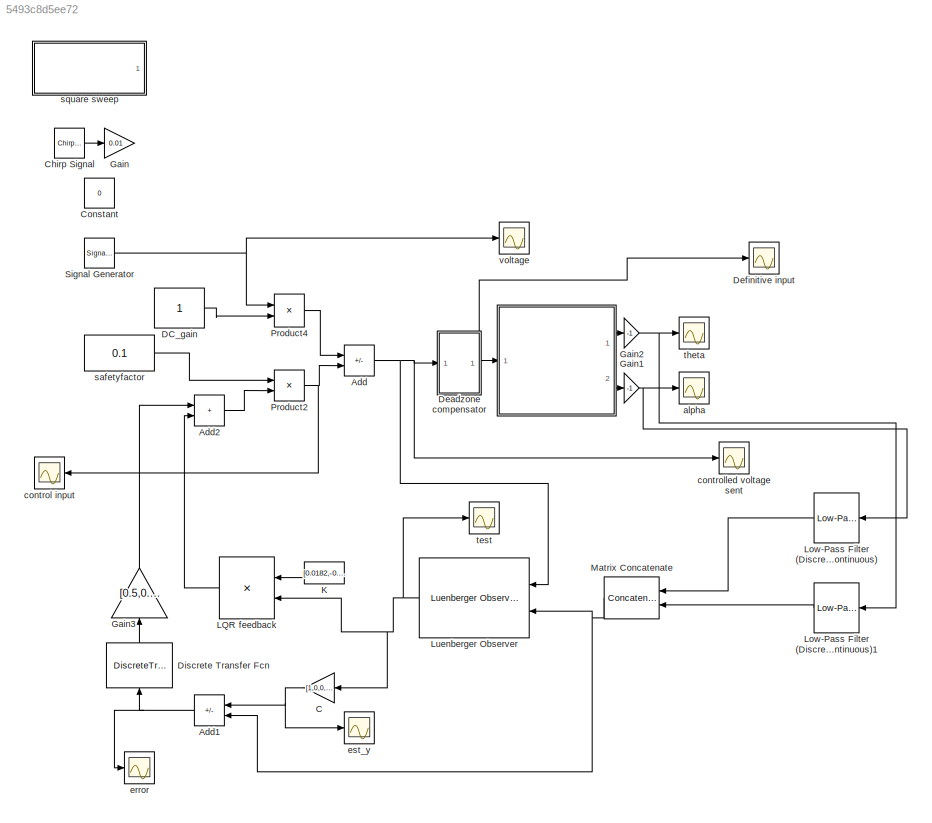
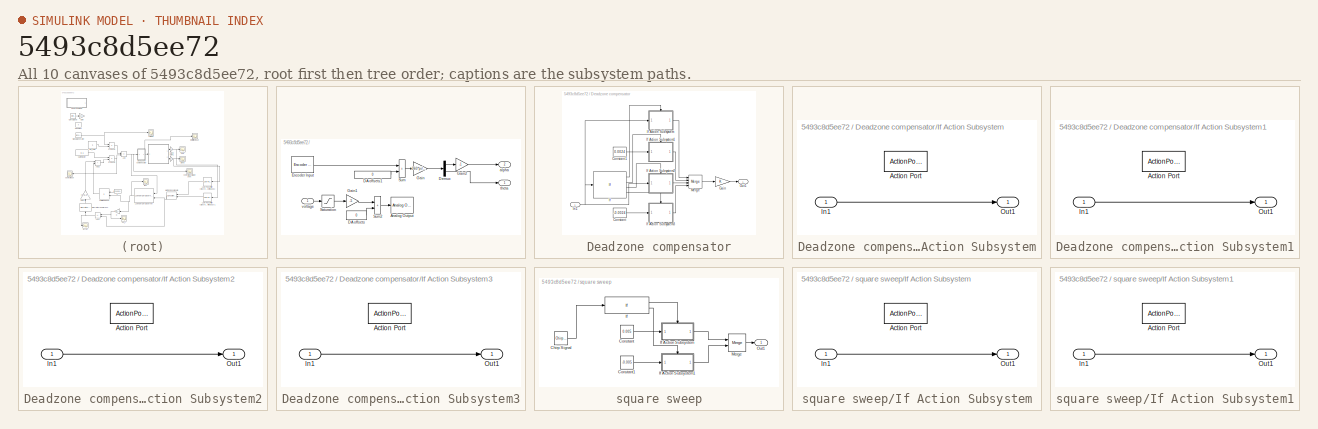
[diagram: thumbnail index - all 10 canvases of the model, root first then tree order]
MODEL slx_5493c8d5ee72
KIND model
CONFIG AbsTol = auto
CONFIG EnableMultiTasking = on
CONFIG FixedStep = auto
CONFIG MaxStep = auto
CONFIG MinStep = auto
CONFIG RelTol = 1e-3
CONFIG SampleTimeConstraint = Unconstrained
CONFIG SolverName = ode1
CONFIG StartTime = 0.0
CONFIG StopTime = 50
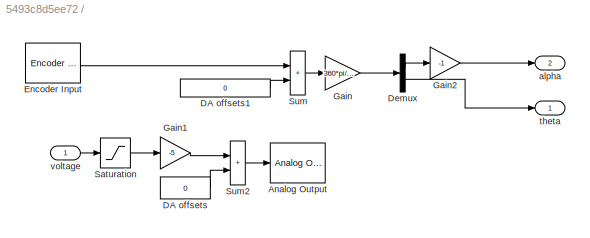
BLOCK [SubSystem]  
  InitFcn = hwinit
  LoadFcn = hwinit
  NameLocation = top
  Ports = [1, 2]
  RequestExecContextInheritance = off
  ShowPortLabels = none
BLOCK [Reference]  /Analog Output  REF=sldrtlib/Analog Output
  AttributesFormatString = Humusoft\nMF634 [auto]
  Ports = [1]
  SourceBlock = sldrtlib/Analog Output
  SourceProductBaseCode = WT
  SourceType = Simulink Desktop Real-Time Analog Output
BLOCK [Constant]  /DA offsets
  Value = 0
BLOCK [Constant]  /DA offsets1
  SampleTime = h
  Value = 0
BLOCK [Demux]  /Demux
  Outputs = 2
  Ports = [1, 2]
BLOCK [Reference]  /Encoder Input  REF=sldrtlib/Encoder Input
  AttributesFormatString = Humusoft\nMF634 [auto]
  Ports = [0, 1]
  SourceBlock = sldrtlib/Encoder Input
  SourceProductBaseCode = WT
  SourceType = Simulink Desktop Real-Time Encoder Input
BLOCK [Gain]  /Gain
  Gain = 360*pi/(180*512*4)
  OutDataTypeStr = Inherit: Same as input
  ParamDataTypeStr = Inherit: Same as input
  SaturateOnIntegerOverflow = on
BLOCK [Gain]  /Gain1
  Gain = -5
  OutDataTypeStr = Inherit: Same as input
  ParamDataTypeStr = Inherit: Same as input
  SaturateOnIntegerOverflow = on
BLOCK [Gain]  /Gain2
  Gain = -1
  OutDataTypeStr = Inherit: Same as input
  ParamDataTypeStr = Inherit: Same as input
  SaturateOnIntegerOverflow = on
BLOCK [Saturate]  /Saturation
  LowerLimit = -1
  UpperLimit = 1
BLOCK [Sum]  /Sum
  IconShape = rectangular
  InputSameDT = on
  OutDataTypeStr = Inherit: Same as first input
  Ports = [2, 1]
  SaturateOnIntegerOverflow = on
BLOCK [Sum]  /Sum2
  IconShape = rectangular
  InputSameDT = on
  OutDataTypeStr = Inherit: Same as first input
  Ports = [2, 1]
  SaturateOnIntegerOverflow = on
BLOCK [Outport]  /alpha
  Port = 2
  Tag = Cable length
BLOCK [Outport]  /theta
  Tag = Cable length
BLOCK [Inport]  /voltage
BLOCK [Sum] Add
  IconShape = rectangular
  Inputs = +-
  Ports = [2, 1]
BLOCK [Sum] Add1
  IconShape = rectangular
  Inputs = -+
  Ports = [2, 1]
BLOCK [Sum] Add2
  IconShape = rectangular
  Ports = [2, 1]
BLOCK [Gain] C
  Gain = [1,0,0,0;0,1,0,0]
  Multiplication = Matrix(K*u)
BLOCK [Reference] Chirp Signal  REF=simulink/Sources/Chirp Signal
  Ports = [0, 1]
  SourceBlock = simulink/Sources/Chirp Signal
  SourceProductBaseCode = SL
  SourceType = chirp
BLOCK [Constant] Constant
  Value = 0
BLOCK [Constant] DC_gain
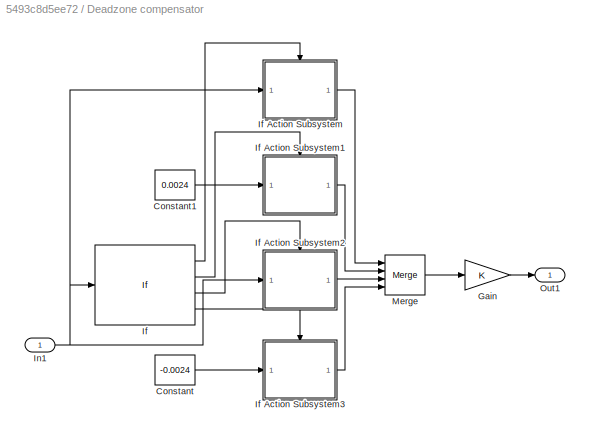
BLOCK [SubSystem] Deadzone compensator
  Ports = [1, 1]
  RequestExecContextInheritance = off
BLOCK [Constant] Deadzone compensator/Constant
  Value = -0.0024
BLOCK [Constant] Deadzone compensator/Constant1
  Value = 0.0024
BLOCK [Gain] Deadzone compensator/Gain
BLOCK [If] Deadzone compensator/If
  ElseIfExpressions = u1 > 0, u1 < -0.0028
  IfExpression = u1 >= 0.0028
  Ports = [1, 4]
BLOCK [SubSystem] Deadzone compensator/If Action Subsystem
  Ports = [1, 1, 0, 0, 0, 0, 0, 1]
  RequestExecContextInheritance = off
  TreatAsAtomicUnit = on
BLOCK [ActionPort] Deadzone compensator/If Action Subsystem/Action Port
  ActionPortLabel = if(u1 >= 0.0028)
BLOCK [Inport] Deadzone compensator/If Action Subsystem/In1
BLOCK [Outport] Deadzone compensator/If Action Subsystem/Out1
BLOCK [SubSystem] Deadzone compensator/If Action Subsystem1
  Ports = [1, 1, 0, 0, 0, 0, 0, 1]
  RequestExecContextInheritance = off
  TreatAsAtomicUnit = on
BLOCK [ActionPort] Deadzone compensator/If Action Subsystem1/Action Port
  ActionPortLabel = elseif(u1 > 0)
BLOCK [Inport] Deadzone compensator/If Action Subsystem1/In1
BLOCK [Outport] Deadzone compensator/If Action Subsystem1/Out1
BLOCK [SubSystem] Deadzone compensator/If Action Subsystem2
  Ports = [1, 1, 0, 0, 0, 0, 0, 1]
  RequestExecContextInheritance = off
  TreatAsAtomicUnit = on
BLOCK [ActionPort] Deadzone compensator/If Action Subsystem2/Action Port
  ActionPortLabel = elseif( u1 < -0.0028)
BLOCK [Inport] Deadzone compensator/If Action Subsystem2/In1
BLOCK [Outport] Deadzone compensator/If Action Subsystem2/Out1
BLOCK [SubSystem] Deadzone compensator/If Action Subsystem3
  Ports = [1, 1, 0, 0, 0, 0, 0, 1]
  RequestExecContextInheritance = off
  TreatAsAtomicUnit = on
BLOCK [ActionPort] Deadzone compensator/If Action Subsystem3/Action Port
  ActionPortLabel = else
BLOCK [Inport] Deadzone compensator/If Action Subsystem3/In1
BLOCK [Outport] Deadzone compensator/If Action Subsystem3/Out1
BLOCK [Inport] Deadzone compensator/In1
BLOCK [Merge] Deadzone compensator/Merge
  Inputs = 4
  Ports = [4, 1]
BLOCK [Outport] Deadzone compensator/Out1
BLOCK [Scope] Definitive input
  Floating = off
  NumInputPorts = 1
  Ports = [1]
  ScopeSpecificationString = Simulink.scopes.TimeScopeBlockCfg('CurrentConfiguration', extmgr.ConfigurationSet(extmgr.Configuration('Core','General UI',true),extmgr.Configuration('Core','Source UI',true),extmgr.Configuration('Sources','WiredSimulink',true,'DataLoggingVariableName','ScopeData1'),extmgr.Configuration('Visuals','Time Domain',true,'SerializedDisplays',{struct('MinYLimReal','-0.02393','MaxYLimReal','0.03801','YLab...<+1430ch>
BLOCK [DiscreteTransferFcn] Discrete Transfer Fcn
  Denominator = [1 -1]
  InputPortMap = u0
  NameLocation = right
  Ports = [1, 1]
BLOCK [Gain] Gain
  Gain = 0.01
BLOCK [Gain] Gain1
  Gain = -1
BLOCK [Gain] Gain2
  Gain = -1
BLOCK [Gain] Gain3
  Gain = [0.5,0.5]
  Multiplication = Matrix(K*u)
  NameLocation = right
BLOCK [Constant] K
  Value = [0.0182,-0.7602,0.0266,-0.0217]
  VectorParams1D = off
BLOCK [Product] LQR feedback
  Multiplication = Matrix(*)
  Ports = [2, 1]
BLOCK [Reference] Low-Pass Filter (Discrete or Continuous)  REF=eeGeneralControl/Low-Pass Filter
(Discrete or Continuous)
  NameLocation = top
  Ports = [1, 1]
  SourceBlock = eeGeneralControl/Low-Pass Filter\n(Discrete or Continuous)
  SourceProductBaseCode = PS
  SourceType = Low-Pass Filter (Discrete or Continuous)
BLOCK [Reference] Low-Pass Filter (Discrete or Continuous)1  REF=eeGeneralControl/Low-Pass Filter
(Discrete or Continuous)
  NameLocation = top
  Ports = [1, 1]
  SourceBlock = eeGeneralControl/Low-Pass Filter\n(Discrete or Continuous)
  SourceProductBaseCode = PS
  SourceType = Low-Pass Filter (Discrete or Continuous)
BLOCK [Reference] Luenberger Observer  REF=eeLuenbergerObserver/Luenberger Observer
  Ports = [2, 1]
  SourceBlock = eeLuenbergerObserver/Luenberger Observer
  SourceProductBaseCode = PS
  SourceType = Luenberger Observer
BLOCK [Concatenate] Matrix Concatenate
  ConcatenateDimension = 2
  NameLocation = top
  Ports = [2, 1]
BLOCK [Product] Product2
  Ports = [2, 1]
BLOCK [Product] Product4
  Inputs = */
  Ports = [2, 1]
BLOCK [SignalGenerator] Signal Generator
  Amplitude = 0.00
  Frequency = 0.2
  Ports = [0, 1]
  WaveForm = square
BLOCK [Scope] alpha
  Floating = off
  NumInputPorts = 1
  Ports = [1]
  ScopeSpecificationString = Simulink.scopes.TimeScopeBlockCfg('CurrentConfiguration', extmgr.ConfigurationSet(extmgr.Configuration('Core','General UI',true),extmgr.Configuration('Core','Source UI',true),extmgr.Configuration('Sources','WiredSimulink',true,'DataLogging',true,'DataLoggingVariableName','alpha','SampleTime','h','DataLoggingSaveFormat','Array','DataLoggingDecimation','1','DataLoggingDecimateData',true),extmgr.Conf...<+1754ch>
BLOCK [Scope] control input
  Floating = off
  NumInputPorts = 1
  Ports = [1]
  ScopeSpecificationString = Simulink.scopes.TimeScopeBlockCfg('CurrentConfiguration', extmgr.ConfigurationSet(extmgr.Configuration('Core','General UI',true),extmgr.Configuration('Core','Source UI',true),extmgr.Configuration('Sources','WiredSimulink',true,'DataLoggingVariableName','ScopeData2'),extmgr.Configuration('Visuals','Time Domain',true,'SerializedDisplays',{struct('MinYLimReal','-0.03801','MaxYLimReal','0.02393','YLab...<+1430ch>
BLOCK [Scope] controlled voltage sent
  Floating = off
  NumInputPorts = 1
  Ports = [1]
  ScopeSpecificationString = Simulink.scopes.TimeScopeBlockCfg('CurrentConfiguration', extmgr.ConfigurationSet(extmgr.Configuration('Core','General UI',true),extmgr.Configuration('Core','Source UI',true),extmgr.Configuration('Sources','WiredSimulink',true,'DataLoggingVariableName','ScopeData1'),extmgr.Configuration('Visuals','Time Domain',true,'SerializedDisplays',{struct('MinYLimReal','-0.10035','MaxYLimReal','0.08802','YLab...<+1430ch>
BLOCK [Scope] error
  Floating = off
  NumInputPorts = 1
  Ports = [1]
  ScopeSpecificationString = Simulink.scopes.TimeScopeBlockCfg('CurrentConfiguration', extmgr.ConfigurationSet(extmgr.Configuration('Core','General UI',true),extmgr.Configuration('Core','Source UI',true),extmgr.Configuration('Sources','WiredSimulink',true,'DataLoggingVariableName','ScopeData1'),extmgr.Configuration('Visuals','Time Domain',true,'SerializedDisplays',{struct('MinYLimReal','-0.00503','MaxYLimReal','0.00938','YLab...<+1426ch>
BLOCK [Scope] est_y
  Floating = off
  NumInputPorts = 1
  Ports = [1]
  ScopeSpecificationString = Simulink.scopes.TimeScopeBlockCfg('CurrentConfiguration', extmgr.ConfigurationSet(extmgr.Configuration('Core','General UI',true),extmgr.Configuration('Core','Source UI',true),extmgr.Configuration('Sources','WiredSimulink',true,'DataLoggingVariableName','ScopeData1'),extmgr.Configuration('Visuals','Time Domain',true,'SerializedDisplays',{struct('MinYLimReal','-2.5845','MaxYLimReal','1.89184','YLabe...<+1449ch>
BLOCK [Constant] safetyfactor
  Value = 0.1
BLOCK [SubSystem] square sweep
  Ports = [0, 1]
  RequestExecContextInheritance = off
BLOCK [Reference] square sweep/Chirp Signal  REF=simulink/Sources/Chirp Signal
  Ports = [0, 1]
  SourceBlock = simulink/Sources/Chirp Signal
  SourceProductBaseCode = SL
  SourceType = chirp
BLOCK [Constant] square sweep/Constant
  Value = 0.005
BLOCK [Constant] square sweep/Constant1
  Value = -0.005
BLOCK [If] square sweep/If
  Ports = [1, 2]
BLOCK [SubSystem] square sweep/If Action Subsystem
  Ports = [1, 1, 0, 0, 0, 0, 0, 1]
  RequestExecContextInheritance = off
  TreatAsAtomicUnit = on
BLOCK [ActionPort] square sweep/If Action Subsystem/Action Port
  ActionPortLabel = if(u1 > 0)
BLOCK [Inport] square sweep/If Action Subsystem/In1
BLOCK [Outport] square sweep/If Action Subsystem/Out1
BLOCK [SubSystem] square sweep/If Action Subsystem1
  Ports = [1, 1, 0, 0, 0, 0, 0, 1]
  RequestExecContextInheritance = off
  TreatAsAtomicUnit = on
BLOCK [ActionPort] square sweep/If Action Subsystem1/Action Port
  ActionPortLabel = else
BLOCK [Inport] square sweep/If Action Subsystem1/In1
BLOCK [Outport] square sweep/If Action Subsystem1/Out1
BLOCK [Merge] square sweep/Merge
  Ports = [2, 1]
BLOCK [Outport] square sweep/Out1
BLOCK [Scope] test
  Floating = off
  NumInputPorts = 1
  Ports = [1]
  ScopeSpecificationString = Simulink.scopes.TimeScopeBlockCfg('CurrentConfiguration', extmgr.ConfigurationSet(extmgr.Configuration('Core','General UI',true),extmgr.Configuration('Core','Source UI',true),extmgr.Configuration('Sources','WiredSimulink',true,'DataLoggingVariableName','ScopeData1'),extmgr.Configuration('Visuals','Time Domain',true,'SerializedDisplays',{struct('MinYLimReal','-4.28682','MaxYLimReal','4.89067','YLab...<+1521ch>
BLOCK [Scope] theta
  Floating = off
  NumInputPorts = 1
  Ports = [1]
  ScopeSpecificationString = Simulink.scopes.TimeScopeBlockCfg('CurrentConfiguration', extmgr.ConfigurationSet(extmgr.Configuration('Core','General UI',true),extmgr.Configuration('Core','Source UI',true),extmgr.Configuration('Sources','WiredSimulink',true,'DataLogging',true,'DataLoggingVariableName','theta','SampleTime','h','DataLoggingSaveFormat','Array','DataLoggingDecimation','1','DataLoggingDecimateData',true),extmgr.Conf...<+1748ch>
BLOCK [Scope] voltage
  Floating = off
  NumInputPorts = 1
  Ports = [1]
  ScopeSpecificationString = Simulink.scopes.TimeScopeBlockCfg('CurrentConfiguration', extmgr.ConfigurationSet(extmgr.Configuration('Core','General UI',true),extmgr.Configuration('Core','Source UI',true),extmgr.Configuration('Sources','WiredSimulink',true,'DataLogging',true,'DataLoggingVariableName','u','SampleTime','h','DataLoggingSaveFormat','Array','DataLoggingDecimation','1','DataLoggingDecimateData',true),extmgr.Configur...<+1713ch>
LINE  /DA offsets1:1 ->  /Sum:2
LINE  /DA offsets:1 ->  /Sum2:2
LINE  /Demux:1 ->  /Gain2:1
LINE  /Demux:2 ->  /theta:1
LINE  /Encoder Input:1 ->  /Sum:1
LINE  /Gain1:1 ->  /Sum2:1
LINE  /Gain2:1 ->  /alpha:1
LINE  /Gain:1 ->  /Demux:1
LINE  /Saturation:1 ->  /Gain1:1
LINE  /Sum2:1 ->  /Analog Output:1
LINE  /Sum:1 ->  /Gain:1
LINE  /voltage:1 ->  /Saturation:1
LINE  :1 -> Gain2:1
LINE  :2 -> Gain1:1
NET Add1:1 -> Discrete Transfer Fcn:1, error:1
LINE Add2:1 -> Product2:2
NET Add:1 -> Deadzone compensator:1, Luenberger Observer:1, controlled voltage sent:1
NET C:1 -> Add1:1, est_y:1
LINE Chirp Signal:1 -> Gain:1
LINE DC_gain:1 -> Product4:2
LINE Deadzone compensator/Constant1:1 -> Deadzone compensator/If Action Subsystem1:1
LINE Deadzone compensator/Constant:1 -> Deadzone compensator/If Action Subsystem3:1
LINE Deadzone compensator/Gain:1 -> Deadzone compensator/Out1:1
LINE Deadzone compensator/If Action Subsystem/In1:1 -> Deadzone compensator/If Action Subsystem/Out1:1
LINE Deadzone compensator/If Action Subsystem1/In1:1 -> Deadzone compensator/If Action Subsystem1/Out1:1
LINE Deadzone compensator/If Action Subsystem1:1 -> Deadzone compensator/Merge:2
LINE Deadzone compensator/If Action Subsystem2/In1:1 -> Deadzone compensator/If Action Subsystem2/Out1:1
LINE Deadzone compensator/If Action Subsystem2:1 -> Deadzone compensator/Merge:3
LINE Deadzone compensator/If Action Subsystem3/In1:1 -> Deadzone compensator/If Action Subsystem3/Out1:1
LINE Deadzone compensator/If Action Subsystem3:1 -> Deadzone compensator/Merge:4
LINE Deadzone compensator/If Action Subsystem:1 -> Deadzone compensator/Merge:1
LINE Deadzone compensator/If:1 -> Deadzone compensator/If Action Subsystem:ifaction
LINE Deadzone compensator/If:2 -> Deadzone compensator/If Action Subsystem1:ifaction
LINE Deadzone compensator/If:3 -> Deadzone compensator/If Action Subsystem2:ifaction
LINE Deadzone compensator/If:4 -> Deadzone compensator/If Action Subsystem3:ifaction
NET Deadzone compensator/In1:1 -> Deadzone compensator/If Action Subsystem2:1, Deadzone compensator/If Action Subsystem:1, Deadzone compensator/If:1
LINE Deadzone compensator/Merge:1 -> Deadzone compensator/Gain:1
NET Deadzone compensator:1 ->  :1, Definitive input:1
LINE Discrete Transfer Fcn:1 -> Gain3:1
NET Gain1:1 -> Low-Pass Filter (Discrete or Continuous):1, alpha:1
NET Gain2:1 -> Low-Pass Filter (Discrete or Continuous)1:1, theta:1
LINE Gain3:1 -> Add2:1
LINE K:1 -> LQR feedback:1
LINE LQR feedback:1 -> Add2:2
LINE Low-Pass Filter (Discrete or Continuous)1:1 -> Matrix Concatenate:2
LINE Low-Pass Filter (Discrete or Continuous):1 -> Matrix Concatenate:1
NET Luenberger Observer:1 -> C:1, LQR feedback:2, test:1
NET Matrix Concatenate:1 -> Add1:2, Luenberger Observer:2
NET Product2:1 -> Add:2, control input:1
LINE Product4:1 -> Add:1
NET Signal Generator:1 -> Product4:1, voltage:1
LINE safetyfactor:1 -> Product2:1
LINE square sweep/Chirp Signal:1 -> square sweep/If:1
LINE square sweep/Constant1:1 -> square sweep/If Action Subsystem1:1
LINE square sweep/Constant:1 -> square sweep/If Action Subsystem:1
LINE square sweep/If Action Subsystem/In1:1 -> square sweep/If Action Subsystem/Out1:1
LINE square sweep/If Action Subsystem1/In1:1 -> square sweep/If Action Subsystem1/Out1:1
LINE square sweep/If Action Subsystem1:1 -> square sweep/Merge:2
LINE square sweep/If Action Subsystem:1 -> square sweep/Merge:1
LINE square sweep/If:1 -> square sweep/If Action Subsystem:ifaction
LINE square sweep/If:2 -> square sweep/If Action Subsystem1:ifaction
LINE square sweep/Merge:1 -> square sweep/Out1:1
note: NET lines group one-source signal fan-out (src -> all destinations, sorted); 1:1 wires keep LINE
